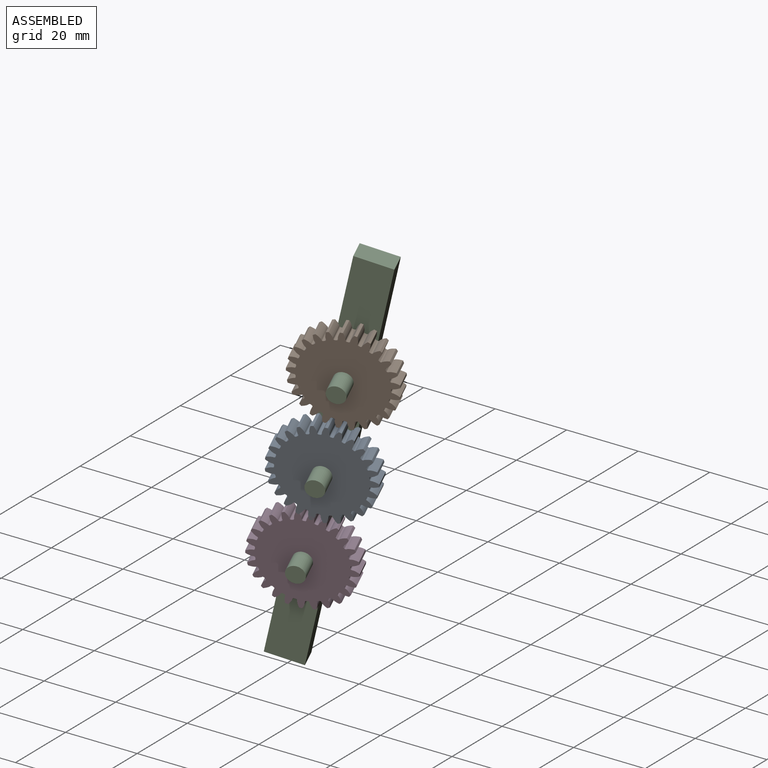
[diagram: assembled view]
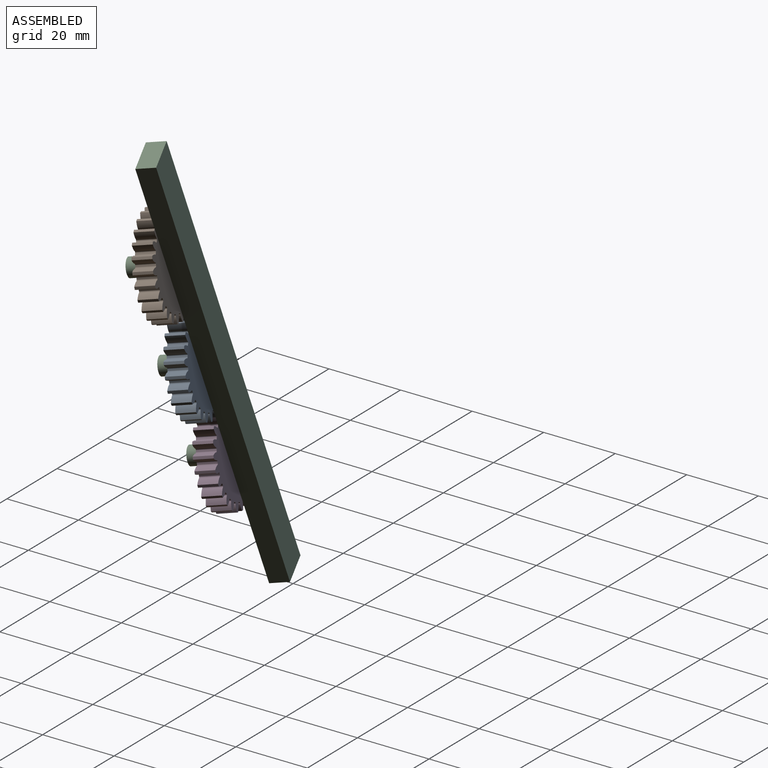
[diagram: assembled view, second angle]
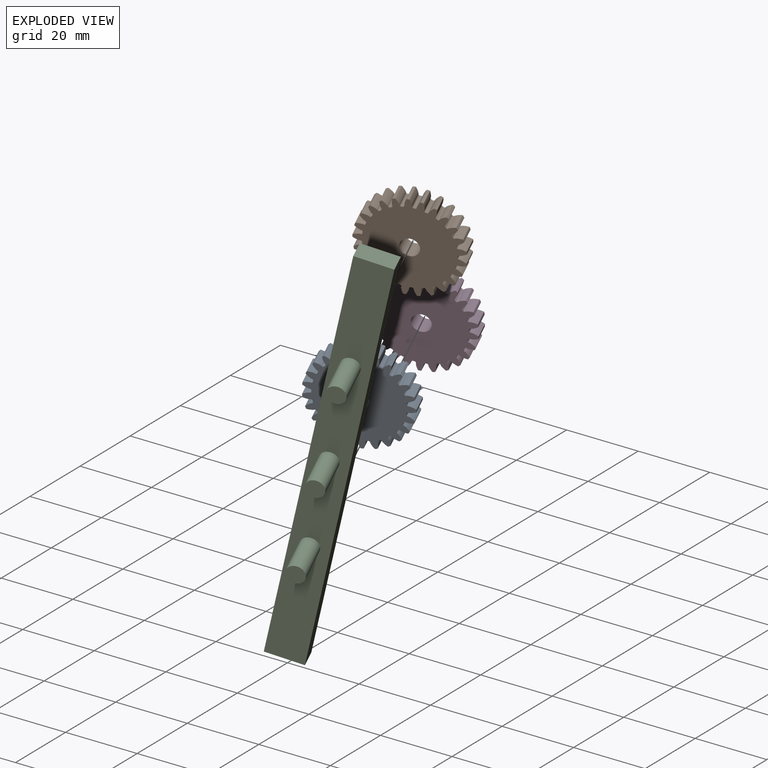
[diagram: exploded view]
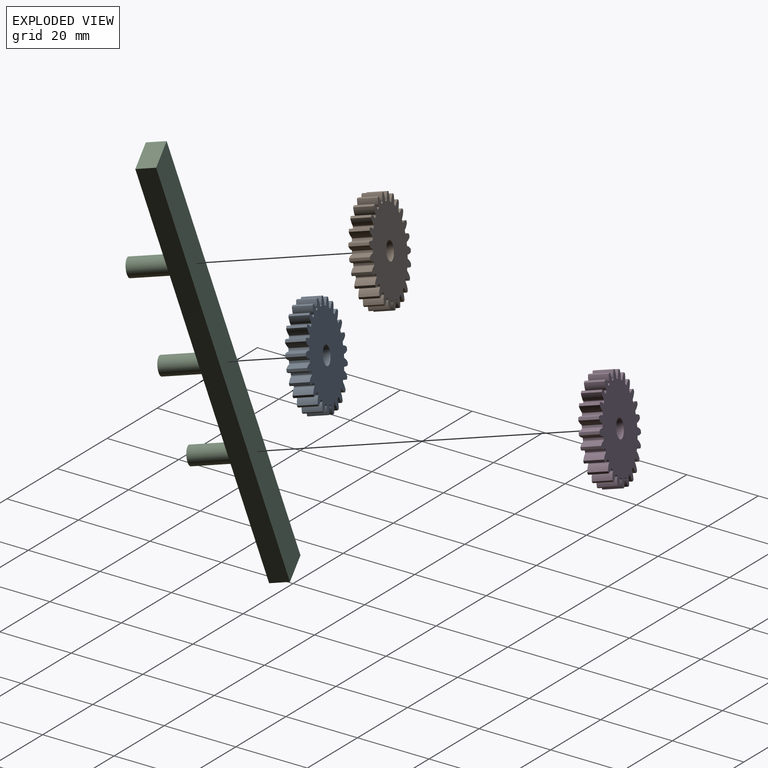
[diagram: exploded view, second angle]
ASSEMBLY  parts=4 mates=3
PART A: 153 faces, bbox 27.4x5.1x27.4 mm
  f0: cylinder r=13.72mm len=5.08mm, axis (0,1,0), area 3.7mm2, adj f24,f26,f137,f149
  f1: cylinder r=13.72mm len=5.08mm, axis (0,1,0), area 3.7mm2, adj f24,f26,f144,f147
  f2: cylinder r=13.72mm len=5.08mm, axis (0,1,0), area 3.7mm2, adj f24,f26,f132,f139
  f3: cylinder r=13.72mm len=5.08mm, axis (0,1,0), area 3.7mm2, adj f24,f26,f127,f134
  f4: cylinder r=13.72mm len=5.08mm, axis (0,1,0), area 3.7mm2, adj f24,f26,f122,f129
  f5: cylinder r=13.72mm len=5.08mm, axis (0,1,0), area 3.7mm2, adj f24,f26,f112,f124
  f6: cylinder r=13.72mm len=5.08mm, axis (0,1,0), area 3.7mm2, adj f24,f26,f107,f119
  f7: cylinder r=13.72mm len=5.08mm, axis (0,1,0), area 3.7mm2, adj f24,f26,f114,f117
  f8: cylinder r=13.72mm len=5.08mm, axis (0,1,0), area 3.7mm2, adj f24,f26,f102,f109
  f9: cylinder r=13.72mm len=5.08mm, axis (0,1,0), area 3.7mm2, adj f24,f26,f97,f104
  f10: cylinder r=13.72mm len=5.08mm, axis (0,1,0), area 3.7mm2, adj f24,f26,f92,f99
  f11: cylinder r=13.72mm len=5.08mm, axis (0,1,0), area 3.7mm2, adj f24,f26,f77,f94
  f12: cylinder r=13.72mm len=5.08mm, axis (0,1,0), area 3.7mm2, adj f24,f26,f27,f89
  f13: cylinder r=13.72mm len=5.08mm, axis (0,1,0), area 3.7mm2, adj f24,f26,f84,f87
  f14: cylinder r=13.72mm len=5.08mm, axis (0,1,0), area 3.7mm2, adj f24,f26,f72,f79
  f15: cylinder r=13.72mm len=5.08mm, axis (0,1,0), area 3.7mm2, adj f24,f26,f74,f82
  f16: cylinder r=13.72mm len=5.08mm, axis (0,1,0), area 3.7mm2, adj f24,f26,f69,f142
  f17: cylinder r=13.72mm len=5.08mm, axis (0,1,0), area 3.7mm2, adj f24,f26,f64,f67
  f18: cylinder r=13.72mm len=5.08mm, axis (0,1,0), area 3.7mm2, adj f24,f26,f59,f62
  f19: cylinder r=13.72mm len=5.08mm, axis (0,1,0), area 3.7mm2, adj f24,f26,f54,f57
  f20: cylinder r=13.72mm len=5.08mm, axis (0,1,0), area 3.7mm2, adj f24,f26,f42,f49
  f21: cylinder r=13.72mm len=5.08mm, axis (0,1,0), area 3.7mm2, adj f24,f26,f32,f44
  f22: cylinder r=13.72mm len=5.08mm, axis (0,1,0), area 3.7mm2, adj f24,f26,f39,f52
  f23: cylinder r=13.72mm len=5.08mm, axis (0,1,0), area 3.7mm2, adj f24,f26,f34,f37
  f24: plane 27.42x27.37mm, normal (0,-1,0), area 479.6mm2, adj f0,f1,f2,f3,f4,f5,f6,f7
  f25: cylinder r=13.72mm len=5.08mm, axis (0,1,0), area 3.7mm2, adj f24,f26,f29,f47
  f26: plane 27.42x27.37mm, normal (0,1,0), area 479.6mm2, adj f0,f1,f2,f3,f4,f5,f6,f7
  f27: extruded ~5.08x1.85mm, area 10.4mm2, adj f12,f24,f26,f30
  f28: cylinder r=11.43mm len=5.08mm, axis (0,1,0), area 1.8mm2, adj f24,f26,f30,f31
  f29: extruded ~5.08x1.85mm, area 10.4mm2, adj f24,f25,f26,f31
  f30: cylinder r=0.38mm len=5.08mm, axis (0,1,0), area 3mm2, adj f24,f26,f27,f28
  f31: cylinder r=0.38mm len=5.08mm, axis (0,1,0), area 3mm2, adj f24,f26,f28,f29
  f32: extruded ~5.08x1.89mm, area 10.4mm2, adj f21,f24,f26,f35
  f33: cylinder r=11.43mm len=5.08mm, axis (0,1,0), area 1.8mm2, adj f24,f26,f35,f36
  f34: extruded ~5.08x1.85mm, area 10.4mm2, adj f23,f24,f26,f36
  f35: cylinder r=0.38mm len=5.08mm, axis (0,1,0), area 3mm2, adj f24,f26,f32,f33
  f36: cylinder r=0.38mm len=5.08mm, axis (0,1,0), area 3mm2, adj f24,f26,f33,f34
  f37: extruded ~5.08x1.66mm, area 10.4mm2, adj f23,f24,f26,f40
  f38: cylinder r=11.43mm len=5.08mm, axis (0,1,0), area 1.8mm2, adj f24,f26,f40,f41
  f39: extruded ~5.08x1.99mm, area 10.4mm2, adj f22,f24,f26,f41
  f40: cylinder r=0.38mm len=5.08mm, axis (0,1,0), area 3mm2, adj f24,f26,f37,f38
  f41: cylinder r=0.38mm len=5.08mm, axis (0,1,0), area 3mm2, adj f24,f26,f38,f39
  f42: extruded ~5.08x2.01mm, area 10.4mm2, adj f20,f24,f26,f45
  f43: cylinder r=11.43mm len=5.08mm, axis (0,1,0), area 1.8mm2, adj f24,f26,f45,f46
  f44: extruded ~5.08x1.59mm, area 10.4mm2, adj f21,f24,f26,f46
  f45: cylinder r=0.38mm len=5.08mm, axis (0,1,0), area 3mm2, adj f24,f26,f42,f43
  f46: cylinder r=0.38mm len=5.08mm, axis (0,1,0), area 3mm2, adj f24,f26,f43,f44
  f47: extruded ~5.08x1.99mm, area 10.4mm2, adj f24,f25,f26,f50
  f48: cylinder r=11.43mm len=5.08mm, axis (0,1,0), area 1.8mm2, adj f24,f26,f50,f51
  f49: extruded ~5.08x1.6mm, area 10.4mm2, adj f20,f24,f26,f51
  f50: cylinder r=0.38mm len=5.08mm, axis (0,1,0), area 3mm2, adj f24,f26,f47,f48
  f51: cylinder r=0.38mm len=5.08mm, axis (0,1,0), area 3mm2, adj f24,f26,f48,f49
  f52: extruded ~5.08x1.52mm, area 10.4mm2, adj f22,f24,f26,f55
  f53: cylinder r=11.43mm len=5.08mm, axis (0,1,0), area 1.8mm2, adj f24,f26,f55,f56
  f54: extruded ~5.08x2.01mm, area 10.4mm2, adj f19,f24,f26,f56
  f55: cylinder r=0.38mm len=5.08mm, axis (0,1,0), area 3mm2, adj f24,f26,f52,f53
  f56: cylinder r=0.38mm len=5.08mm, axis (0,1,0), area 3mm2, adj f24,f26,f53,f54
  f57: extruded ~5.08x1.8mm, area 10.4mm2, adj f19,f24,f26,f60
  f58: cylinder r=11.43mm len=5.08mm, axis (0,1,0), area 1.8mm2, adj f24,f26,f60,f61
  f59: extruded ~5.08x1.9mm, area 10.4mm2, adj f18,f24,f26,f61
  f60: cylinder r=0.38mm len=5.08mm, axis (0,1,0), area 3mm2, adj f24,f26,f57,f58
  f61: cylinder r=0.38mm len=5.08mm, axis (0,1,0), area 3mm2, adj f24,f26,f58,f59
  f62: extruded ~5.08x1.97mm, area 10.4mm2, adj f18,f24,f26,f65
  f63: cylinder r=11.43mm len=5.08mm, axis (0,1,0), area 1.8mm2, adj f24,f26,f65,f66
  f64: extruded ~5.08x1.67mm, area 10.4mm2, adj f17,f24,f26,f66
  f65: cylinder r=0.38mm len=5.08mm, axis (0,1,0), area 3mm2, adj f24,f26,f62,f63
  f66: cylinder r=0.38mm len=5.08mm, axis (0,1,0), area 3mm2, adj f24,f26,f63,f64
  f67: extruded ~5.08x2.01mm, area 10.4mm2, adj f17,f24,f26,f70
  f68: cylinder r=11.43mm len=5.08mm, axis (0,1,0), area 1.8mm2, adj f24,f26,f70,f71
  f69: extruded ~5.08x1.5mm, area 10.4mm2, adj f16,f24,f26,f71
  f70: cylinder r=0.38mm len=5.08mm, axis (0,1,0), area 3mm2, adj f24,f26,f67,f68
  f71: cylinder r=0.38mm len=5.08mm, axis (0,1,0), area 3mm2, adj f24,f26,f68,f69
  f72: extruded ~5.08x1.85mm, area 10.4mm2, adj f14,f24,f26,f75
  f73: cylinder r=11.43mm len=5.08mm, axis (0,1,0), area 1.8mm2, adj f24,f26,f75,f76
  f74: extruded ~5.08x1.89mm, area 10.4mm2, adj f15,f24,f26,f76
  f75: cylinder r=0.38mm len=5.08mm, axis (0,1,0), area 3mm2, adj f24,f26,f72,f73
  f76: cylinder r=0.38mm len=5.08mm, axis (0,1,0), area 3mm2, adj f24,f26,f73,f74
  f77: extruded ~5.08x1.99mm, area 10.4mm2, adj f11,f24,f26,f80
  f78: cylinder r=11.43mm len=5.08mm, axis (0,1,0), area 1.8mm2, adj f24,f26,f80,f81
  f79: extruded ~5.08x1.66mm, area 10.4mm2, adj f14,f24,f26,f81
  f80: cylinder r=0.38mm len=5.08mm, axis (0,1,0), area 3mm2, adj f24,f26,f77,f78
  f81: cylinder r=0.38mm len=5.08mm, axis (0,1,0), area 3mm2, adj f24,f26,f78,f79
  f82: extruded ~5.08x1.59mm, area 10.4mm2, adj f15,f24,f26,f85
  f83: cylinder r=11.43mm len=5.08mm, axis (0,1,0), area 1.8mm2, adj f24,f26,f85,f86
  f84: extruded ~5.08x2.01mm, area 10.4mm2, adj f13,f24,f26,f86
  f85: cylinder r=0.38mm len=5.08mm, axis (0,1,0), area 3mm2, adj f24,f26,f82,f83
  f86: cylinder r=0.38mm len=5.08mm, axis (0,1,0), area 3mm2, adj f24,f26,f83,f84
  f87: extruded ~5.08x1.6mm, area 10.4mm2, adj f13,f24,f26,f90
  f88: cylinder r=11.43mm len=5.08mm, axis (0,1,0), area 1.8mm2, adj f24,f26,f90,f91
  f89: extruded ~5.08x1.99mm, area 10.4mm2, adj f12,f24,f26,f91
  f90: cylinder r=0.38mm len=5.08mm, axis (0,1,0), area 3mm2, adj f24,f26,f87,f88
  f91: cylinder r=0.38mm len=5.08mm, axis (0,1,0), area 3mm2, adj f24,f26,f88,f89
  f92: extruded ~5.08x2.01mm, area 10.4mm2, adj f10,f24,f26,f95
  f93: cylinder r=11.43mm len=5.08mm, axis (0,1,0), area 1.8mm2, adj f24,f26,f95,f96
  f94: extruded ~5.08x1.52mm, area 10.4mm2, adj f11,f24,f26,f96
  f95: cylinder r=0.38mm len=5.08mm, axis (0,1,0), area 3mm2, adj f24,f26,f92,f93
  f96: cylinder r=0.38mm len=5.08mm, axis (0,1,0), area 3mm2, adj f24,f26,f93,f94
  f97: extruded ~5.08x1.9mm, area 10.4mm2, adj f9,f24,f26,f100
  f98: cylinder r=11.43mm len=5.08mm, axis (0,1,0), area 1.8mm2, adj f24,f26,f100,f101
  f99: extruded ~5.08x1.8mm, area 10.4mm2, adj f10,f24,f26,f101
  f100: cylinder r=0.38mm len=5.08mm, axis (0,1,0), area 3mm2, adj f24,f26,f97,f98
  f101: cylinder r=0.38mm len=5.08mm, axis (0,1,0), area 3mm2, adj f24,f26,f98,f99
  f102: extruded ~5.08x1.67mm, area 10.4mm2, adj f8,f24,f26,f105
  f103: cylinder r=11.43mm len=5.08mm, axis (0,1,0), area 1.8mm2, adj f24,f26,f105,f106
  f104: extruded ~5.08x1.97mm, area 10.4mm2, adj f9,f24,f26,f106
  f105: cylinder r=0.38mm len=5.08mm, axis (0,1,0), area 3mm2, adj f24,f26,f102,f103
  f106: cylinder r=0.38mm len=5.08mm, axis (0,1,0), area 3mm2, adj f24,f26,f103,f104
  f107: extruded ~5.08x1.5mm, area 10.4mm2, adj f6,f24,f26,f110
  f108: cylinder r=11.43mm len=5.08mm, axis (0,1,0), area 1.8mm2, adj f24,f26,f110,f111
  f109: extruded ~5.08x2.01mm, area 10.4mm2, adj f8,f24,f26,f111
  f110: cylinder r=0.38mm len=5.08mm, axis (0,1,0), area 3mm2, adj f24,f26,f107,f108
  f111: cylinder r=0.38mm len=5.08mm, axis (0,1,0), area 3mm2, adj f24,f26,f108,f109
  f112: extruded ~5.08x1.96mm, area 10.4mm2, adj f5,f24,f26,f115
  f113: cylinder r=11.43mm len=5.08mm, axis (0,1,0), area 1.8mm2, adj f24,f26,f115,f116
  f114: extruded ~5.08x1.73mm, area 10.4mm2, adj f7,f24,f26,f116
  f115: cylinder r=0.38mm len=5.08mm, axis (0,1,0), area 3mm2, adj f24,f26,f112,f113
  f116: cylinder r=0.38mm len=5.08mm, axis (0,1,0), area 3mm2, adj f24,f26,f113,f114
  f117: extruded ~5.08x1.79mm, area 10.4mm2, adj f7,f24,f26,f120
  f118: cylinder r=11.43mm len=5.08mm, axis (0,1,0), area 1.8mm2, adj f24,f26,f120,f121
  f119: extruded ~5.08x1.93mm, area 10.4mm2, adj f6,f24,f26,f121
  f120: cylinder r=0.38mm len=5.08mm, axis (0,1,0), area 3mm2, adj f24,f26,f117,f118
  f121: cylinder r=0.38mm len=5.08mm, axis (0,1,0), area 3mm2, adj f24,f26,f118,f119
  f122: extruded ~5.08x2.01mm, area 10.4mm2, adj f4,f24,f26,f125
  f123: cylinder r=11.43mm len=5.08mm, axis (0,1,0), area 1.8mm2, adj f24,f26,f125,f126
  f124: extruded ~5.08x1.43mm, area 10.4mm2, adj f5,f24,f26,f126
  f125: cylinder r=0.38mm len=5.08mm, axis (0,1,0), area 3mm2, adj f24,f26,f122,f123
  f126: cylinder r=0.38mm len=5.08mm, axis (0,1,0), area 3mm2, adj f24,f26,f123,f124
  f127: extruded ~5.08x1.94mm, area 10.4mm2, adj f3,f24,f26,f130
  f128: cylinder r=11.43mm len=5.08mm, axis (0,1,0), area 1.8mm2, adj f24,f26,f130,f131
  f129: extruded ~5.08x1.74mm, area 10.4mm2, adj f4,f24,f26,f131
  f130: cylinder r=0.38mm len=5.08mm, axis (0,1,0), area 3mm2, adj f24,f26,f127,f128
  f131: cylinder r=0.38mm len=5.08mm, axis (0,1,0), area 3mm2, adj f24,f26,f128,f129
  f132: extruded ~5.08x1.74mm, area 10.4mm2, adj f2,f24,f26,f135
  f133: cylinder r=11.43mm len=5.08mm, axis (0,1,0), area 1.8mm2, adj f24,f26,f135,f136
  f134: extruded ~5.08x1.94mm, area 10.4mm2, adj f3,f24,f26,f136
  f135: cylinder r=0.38mm len=5.08mm, axis (0,1,0), area 3mm2, adj f24,f26,f132,f133
  f136: cylinder r=0.38mm len=5.08mm, axis (0,1,0), area 3mm2, adj f24,f26,f133,f134
  f137: extruded ~5.08x1.43mm, area 10.4mm2, adj f0,f24,f26,f140
  f138: cylinder r=11.43mm len=5.08mm, axis (0,1,0), area 1.8mm2, adj f24,f26,f140,f141
  f139: extruded ~5.08x2.01mm, area 10.4mm2, adj f2,f24,f26,f141
  f140: cylinder r=0.38mm len=5.08mm, axis (0,1,0), area 3mm2, adj f24,f26,f137,f138
  f141: cylinder r=0.38mm len=5.08mm, axis (0,1,0), area 3mm2, adj f24,f26,f138,f139
  f142: extruded ~5.08x1.93mm, area 10.4mm2, adj f16,f24,f26,f145
  f143: cylinder r=11.43mm len=5.08mm, axis (0,1,0), area 1.8mm2, adj f24,f26,f145,f146
  f144: extruded ~5.08x1.79mm, area 10.4mm2, adj f1,f24,f26,f146
  f145: cylinder r=0.38mm len=5.08mm, axis (0,1,0), area 3mm2, adj f24,f26,f142,f143
  f146: cylinder r=0.38mm len=5.08mm, axis (0,1,0), area 3mm2, adj f24,f26,f143,f144
  f147: extruded ~5.08x1.73mm, area 10.4mm2, adj f1,f24,f26,f150
  f148: cylinder r=11.43mm len=5.08mm, axis (0,1,0), area 1.8mm2, adj f24,f26,f150,f151
  f149: extruded ~5.08x1.96mm, area 10.4mm2, adj f0,f24,f26,f151
  f150: cylinder r=0.38mm len=5.08mm, axis (0,1,0), area 3mm2, adj f24,f26,f147,f148
  f151: cylinder r=0.38mm len=5.08mm, axis (0,1,0), area 3mm2, adj f24,f26,f148,f149
  f152: cylinder r=2.5mm len=5.08mm, axis (0,-1,0), area 79.8mm2, adj f24,f26
PART B: same geometry as A
PART C: 12 faces, bbox 120x16.4x10 mm
  f0: plane 120x5.09mm, normal (0,0,-1), area 611.3mm2, adj f1,f3,f4,f5
  f1: plane 10x5.09mm, normal (1,0,0), area 50.9mm2, adj f0,f2,f4,f5
  f2: plane 120x5.09mm, normal (0,0,1), area 611.3mm2, adj f1,f3,f4,f5
  f3: plane 10x5.09mm, normal (-1,0,0), area 50.9mm2, adj f0,f2,f4,f5
  f4: plane 120x10mm, normal (0,-1,0), area 1141.1mm2, adj f0,f1,f2,f3,f6,f8,f10
  f5: plane 120x10mm, normal (0,1,0), area 1200mm2, adj f0,f1,f2,f3
  f6: cylinder r=2.5mm len=11.33mm, axis (0,1,0), area 178mm2, adj f4,f7
  f7: plane 5x5mm, normal (0,-1,0), area 19.6mm2, adj f6
  f8: cylinder r=2.5mm len=11.33mm, axis (0,1,0), area 178mm2, adj f4,f9
  f9: plane 5x5mm, normal (0,-1,0), area 19.6mm2, adj f8
  f10: cylinder r=2.5mm len=11.33mm, axis (0,1,0), area 178mm2, adj f4,f11
  f11: plane 5x5mm, normal (0,-1,0), area 19.6mm2, adj f10
PART D: same geometry as A
PLACE A rot(axis=(0.37,-0.9,0.25),48.9deg) t=(-40.77,8.87,3.82)mm
PLACE B rot(axis=(-0.14,0.98,0.12),165.8deg) t=(-32.61,5.7,30.94)mm
PLACE C rot(axis=(0.28,-0.96,0.1),76.9deg) t=(-42.48,14.17,4.95)mm
PLACE D rot(axis=(-0.02,0.96,0.29),78.1deg) t=(-48.21,11.76,-20.92)mm
MATE revolute C.f10 <-> D.f0  axis (-0.3,0.93,0.2) through (-46.68,7.03,-21.94)mm
MATE revolute B.f152 <-> C.f8  axis (0.3,-0.93,-0.2) through (-31.08,0.96,29.93)mm
MATE revolute C.f6 <-> A.f0  axis (-0.3,0.93,0.2) through (-39.24,4.13,2.81)mm
